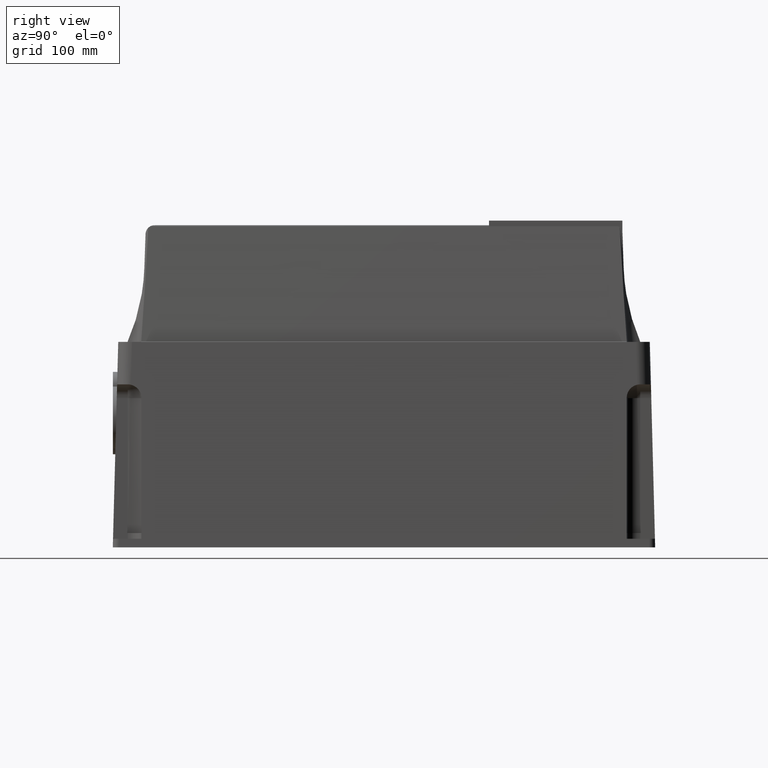
[diagram: clean part render]
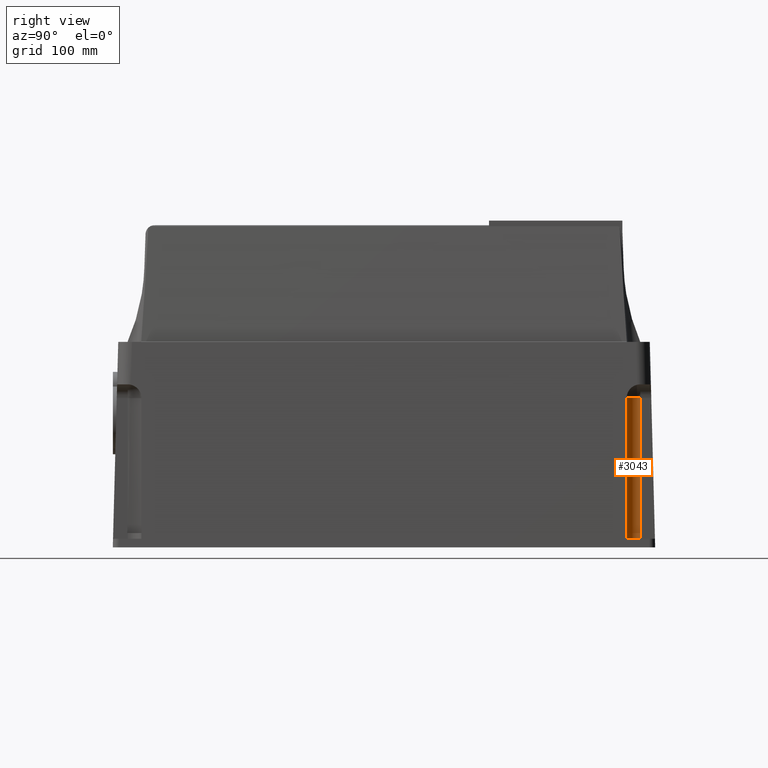
[diagram: same view with one face highlighted and labeled with its STEP entity id]
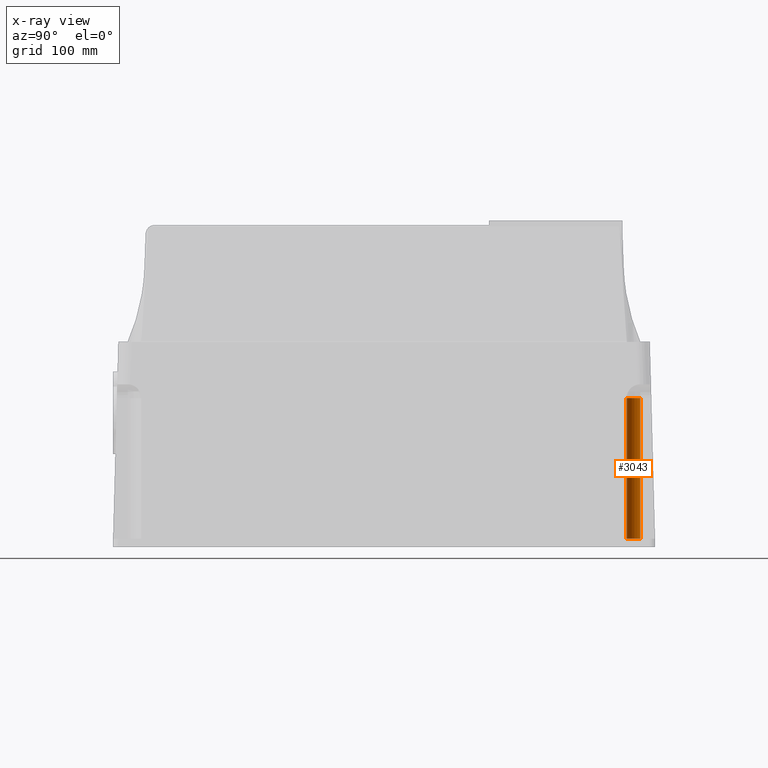
[diagram: x-ray of the same camera — body ghosted, the highlighted face saturated]
A machine part, right view. The second image highlights one B-rep face of the part: STEP entity #3043.
The next image is the same camera in x-ray: the body ghosted, the highlighted face saturated — about 0% of this face is hidden behind the body in this view.
In plain terms, the highlighted cylindrical surface (edge-blend (fillet) strip) has radius 12 mm, axis along (0, 0, 1).
Its self-contained STEP definition (entity closure, byte-faithful):
#102 = VERTEX_POINT ( 'NONE', #3726 ) ;
#247 = DIRECTION ( 'NONE',  ( -0.000000000000000000, -0.000000000000000000, -1.000000000000000000 ) ) ;
#269 = DIRECTION ( 'NONE',  ( 1.000000000000000000, 0.000000000000000000, 0.000000000000000000 ) ) ;
#349 = CIRCLE ( 'NONE', #2015, 0.4724409448818902013 ) ;
#422 = DIRECTION ( 'NONE',  ( 0.000000000000000000, 0.000000000000000000, 1.000000000000000000 ) ) ;
#442 = LINE ( 'NONE', #1656, #1108 ) ;
#557 = CARTESIAN_POINT ( 'NONE',  ( 5.787401574803155313, 8.818897637795275912, 0.2952755905511813550 ) ) ;
#563 = DIRECTION ( 'NONE',  ( 0.000000000000000000, -0.000000000000000000, -1.000000000000000000 ) ) ;
#717 = EDGE_CURVE ( 'NONE', #2993, #1796, #1777, .T. ) ;
#937 = AXIS2_PLACEMENT_3D ( 'NONE', #1749, #247, #2671 ) ;
#1028 = CARTESIAN_POINT ( 'NONE',  ( 5.787401574803155313, 8.346456692913385211, 0.2952755905511812995 ) ) ;
#1108 = VECTOR ( 'NONE', #422, 39.37007874015748143 ) ;
#1470 = CARTESIAN_POINT ( 'NONE',  ( 5.787401574803155313, 8.818897637795275912, 5.610236220472442525 ) ) ;
#1595 = EDGE_CURVE ( 'NONE', #102, #1796, #349, .T. ) ;
#1656 = CARTESIAN_POINT ( 'NONE',  ( 5.314960629921263724, 8.818897637795275912, 5.610236220472442525 ) ) ;
#1749 = CARTESIAN_POINT ( 'NONE',  ( 5.787401574803155313, 8.818897637795275912, 5.137795275590551825 ) ) ;
#1777 = LINE ( 'NONE', #2362, #2457 ) ;
#1796 = VERTEX_POINT ( 'NONE', #1028 ) ;
#1878 = ORIENTED_EDGE ( 'NONE', *, *, #1595, .F. ) ;
#1931 = ORIENTED_EDGE ( 'NONE', *, *, #3962, .T. ) ;
#2015 = AXIS2_PLACEMENT_3D ( 'NONE', #557, #3649, #3263 ) ;
#2053 = EDGE_LOOP ( 'NONE', ( #1931, #3754, #3254, #1878 ) ) ;
#2140 = CARTESIAN_POINT ( 'NONE',  ( 5.787401574803155313, 8.346456692913385211, 5.137795275590551825 ) ) ;
#2155 = CIRCLE ( 'NONE', #937, 0.4724409448818902013 ) ;
#2317 = CARTESIAN_POINT ( 'NONE',  ( 5.314960629921264612, 8.818897637795275912, 5.137795275590550048 ) ) ;
#2362 = CARTESIAN_POINT ( 'NONE',  ( 5.787401574803155313, 8.346456692913385211, 5.610236220472442525 ) ) ;
#2371 = CYLINDRICAL_SURFACE ( 'NONE', #3112, 0.4724409448818902013 ) ;
#2426 = VERTEX_POINT ( 'NONE', #2317 ) ;
#2457 = VECTOR ( 'NONE', #563, 39.37007874015748143 ) ;
#2671 = DIRECTION ( 'NONE',  ( 1.000000000000000000, 0.000000000000000000, 0.000000000000000000 ) ) ;
#2993 = VERTEX_POINT ( 'NONE', #2140 ) ;
#2996 = FACE_OUTER_BOUND ( 'NONE', #2053, .T. ) ;
#3015 = DIRECTION ( 'NONE',  ( 0.000000000000000000, 0.000000000000000000, 1.000000000000000000 ) ) ;
#3043 = ADVANCED_FACE ( 'NONE', ( #2996 ), #2371, .F. ) ;
#3112 = AXIS2_PLACEMENT_3D ( 'NONE', #1470, #3015, #269 ) ;
#3254 = ORIENTED_EDGE ( 'NONE', *, *, #717, .T. ) ;
#3263 = DIRECTION ( 'NONE',  ( 1.000000000000000000, 0.000000000000000000, 0.000000000000000000 ) ) ;
#3300 = EDGE_CURVE ( 'NONE', #2993, #2426, #2155, .T. ) ;
#3649 = DIRECTION ( 'NONE',  ( 0.000000000000000000, 0.000000000000000000, 1.000000000000000000 ) ) ;
#3726 = CARTESIAN_POINT ( 'NONE',  ( 5.314960629921263724, 8.818897637795275912, 0.2952755905511812995 ) ) ;
#3754 = ORIENTED_EDGE ( 'NONE', *, *, #3300, .F. ) ;
#3962 = EDGE_CURVE ( 'NONE', #102, #2426, #442, .T. ) ;